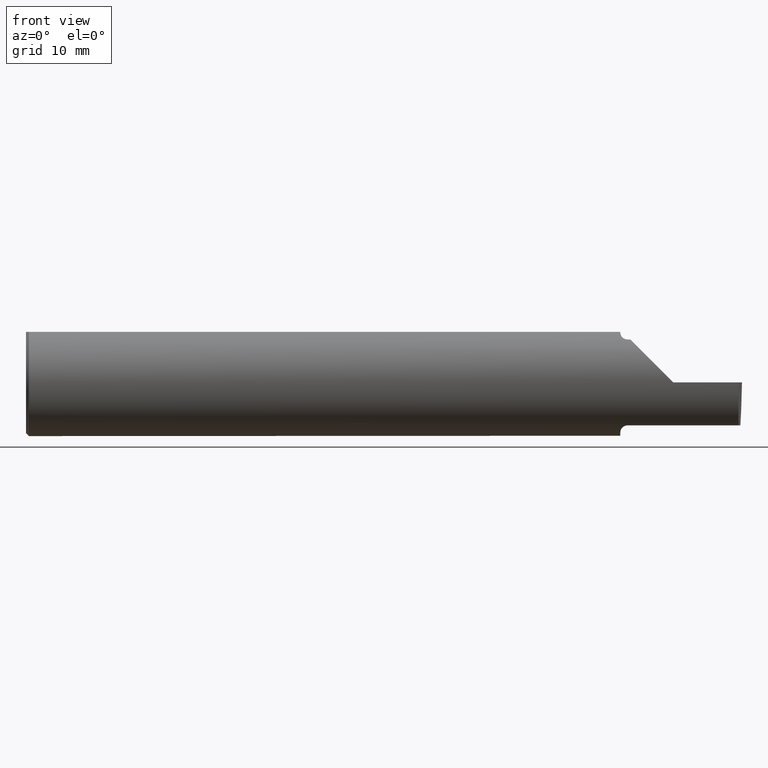
[diagram: clean part render]
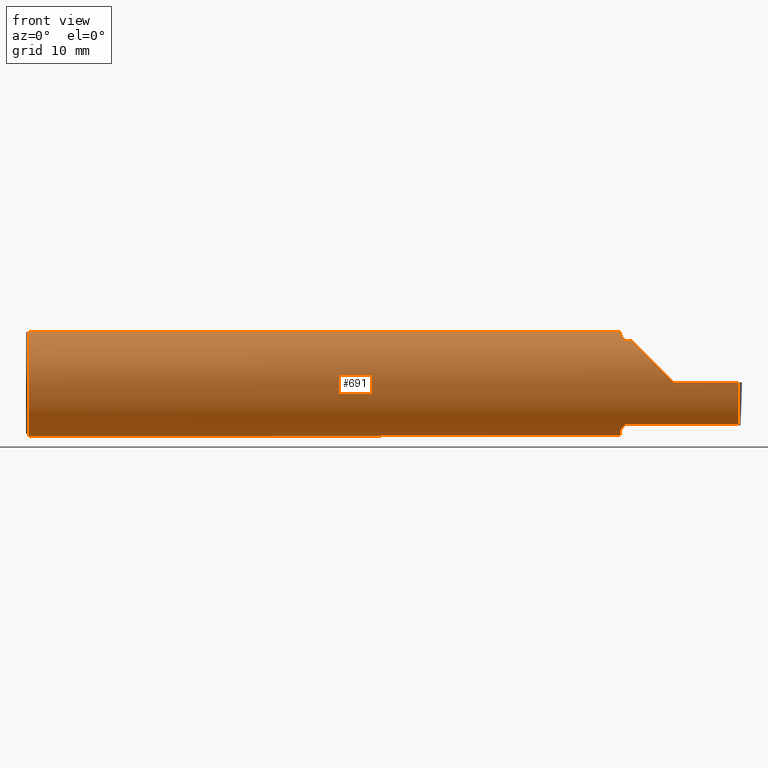
[diagram: same view with one face highlighted and labeled with its STEP entity id]
A machine part, front view. The second image highlights one B-rep face of the part: STEP entity #691.
In plain terms, the highlighted cylindrical surface (partial cylindrical patch) has radius 4.7587 mm, axis along (-1, -0, -0).
Its self-contained STEP definition (entity closure, byte-faithful):
#1 = CIRCLE ( 'NONE', #670, 0.1873499999999999888 ) ;
#5 =( BOUNDED_CURVE ( )  B_SPLINE_CURVE ( 3, ( #41, #292, #36, #789 ),
 .UNSPECIFIED., .F., .T. ) 
 B_SPLINE_CURVE_WITH_KNOTS ( ( 4, 4 ),
 ( 4.712388980384688786, 5.606916381293139295 ),
 .UNSPECIFIED. ) 
 CURVE ( )  GEOMETRIC_REPRESENTATION_ITEM ( )  RATIONAL_B_SPLINE_CURVE ( ( 1.000000000000000000, 0.9344226172588797619, 0.9344226172588797619, 1.000000000000000000 ) ) 
 REPRESENTATION_ITEM ( '' )  );
#8 = CARTESIAN_POINT ( 'NONE',  ( 2.076062863587535556, -0.08334999999999995191, -0.1677879614275112619 ) ) ;
#15 = CARTESIAN_POINT ( 'NONE',  ( 2.086319809340846820, -0.1102629523538395800, 0.1514982751257170079 ) ) ;
#16 = VECTOR ( 'NONE', #774, 39.37007874015748143 ) ;
#19 = CARTESIAN_POINT ( 'NONE',  ( 2.488255780514392335, -0.1873499999999999888, 0.000000000000000000 ) ) ;
#20 = EDGE_CURVE ( 'NONE', #267, #304, #796, .T. ) ;
#22 = CARTESIAN_POINT ( 'NONE',  ( 2.080806801261507299, -0.1009700360460131230, -0.1578590382459147679 ) ) ;
#24 = VERTEX_POINT ( 'NONE', #648 ) ;
#26 = CARTESIAN_POINT ( 'NONE',  ( 2.077380638915945710, -0.09060738690120610783, -0.1640321561807271122 ) ) ;
#36 = CARTESIAN_POINT ( 'NONE',  ( 2.150065971957464850, -0.1623470442677540371, 0.1099340280425340488 ) ) ;
#39 = EDGE_CURVE ( 'NONE', #330, #399, #471, .T. ) ;
#40 = ORIENTED_EDGE ( 'NONE', *, *, #74, .T. ) ;
#41 = CARTESIAN_POINT ( 'NONE',  ( 2.260000000000000231, -0.1873499999999999888, 2.939152317953647352E-17 ) ) ;
#58 = CARTESIAN_POINT ( 'NONE',  ( 2.488255780514392335, -0.1873499999999999888, 0.000000000000000000 ) ) ;
#59 = CIRCLE ( 'NONE', #547, 0.1873499999999999888 ) ;
#61 = LINE ( 'NONE', #305, #108 ) ;
#74 = EDGE_CURVE ( 'NONE', #304, #402, #629, .T. ) ;
#78 = CARTESIAN_POINT ( 'NONE',  ( 2.097868998470238555, -0.1172600179964006645, -0.1461167706989303650 ) ) ;
#83 = CARTESIAN_POINT ( 'NONE',  ( 0.009999999999999346217, 0.000000000000000000, 0.000000000000000000 ) ) ;
#84 = CARTESIAN_POINT ( 'NONE',  ( 2.487246082891137355, -0.1873500000000000165, -0.05781030015605123640 ) ) ;
#85 = VERTEX_POINT ( 'NONE', #210 ) ;
#90 = CARTESIAN_POINT ( 'NONE',  ( 2.092163414264744947, -0.1151183835841405045, -0.1478135984872521735 ) ) ;
#98 = CARTESIAN_POINT ( 'NONE',  ( 2.076062863587535556, -0.08334999999999995191, -0.1677879614275112619 ) ) ;
#108 = VECTOR ( 'NONE', #436, 39.37007874015748143 ) ;
#109 = EDGE_CURVE ( 'NONE', #267, #696, #707, .T. ) ;
#113 = CARTESIAN_POINT ( 'NONE',  ( 2.075346246588685162, -0.07856197451716405433, -0.1701664510438046507 ) ) ;
#128 = CARTESIAN_POINT ( 'NONE',  ( 0.000000000000000000, 0.000000000000000000, 0.000000000000000000 ) ) ;
#129 = CARTESIAN_POINT ( 'NONE',  ( 0.009999999999999346217, 0.000000000000000000, 0.000000000000000000 ) ) ;
#136 = CARTESIAN_POINT ( 'NONE',  ( 2.100000000000000089, -0.1172600179964006922, 0.1461167706989303927 ) ) ;
#139 = CARTESIAN_POINT ( 'NONE',  ( 2.077158970028690099, -0.09067355718685703170, 0.1641499263364886163 ) ) ;
#142 = EDGE_CURVE ( 'NONE', #216, #330, #716, .T. ) ;
#192 = LINE ( 'NONE', #552, #650 ) ;
#206 = CARTESIAN_POINT ( 'NONE',  ( 2.488151344270815191, -0.1172600179964006090, -0.1461167706989303927 ) ) ;
#208 = DIRECTION ( 'NONE',  ( 1.000000000000000000, 0.000000000000000000, 0.000000000000000000 ) ) ;
#210 = CARTESIAN_POINT ( 'NONE',  ( 2.113883229301068312, -0.1172600179964003175, 0.1461167706989304760 ) ) ;
#213 = DIRECTION ( 'NONE',  ( 0.000000000000000000, 0.000000000000000000, -1.000000000000000000 ) ) ;
#216 = VERTEX_POINT ( 'NONE', #542 ) ;
#221 = VERTEX_POINT ( 'NONE', #534 ) ;
#222 = CYLINDRICAL_SURFACE ( 'NONE', #340, 0.1873499999999999888 ) ;
#226 = CIRCLE ( 'NONE', #683, 0.1873499999999999888 ) ;
#230 = CARTESIAN_POINT ( 'NONE',  ( 2.075000000000000178, -0.06851976604679065053, -0.1743704796142198643 ) ) ;
#234 = CARTESIAN_POINT ( 'NONE',  ( 2.488151344270815191, -0.1172600179964006090, -0.1461167706989303927 ) ) ;
#253 = VERTEX_POINT ( 'NONE', #538 ) ;
#263 = EDGE_CURVE ( 'NONE', #575, #626, #614, .T. ) ;
#267 = VERTEX_POINT ( 'NONE', #234 ) ;
#271 = CARTESIAN_POINT ( 'NONE',  ( 2.079075010165367665, -0.09778159395695856793, 0.1599914159748310749 ) ) ;
#275 = DIRECTION ( 'NONE',  ( -1.000000000000000000, -0.000000000000000000, -0.000000000000000000 ) ) ;
#286 = ORIENTED_EDGE ( 'NONE', *, *, #342, .T. ) ;
#291 = ORIENTED_EDGE ( 'NONE', *, *, #142, .F. ) ;
#292 = CARTESIAN_POINT ( 'NONE',  ( 2.202189699843948301, -0.1873500000000000443, 0.05781030015605120170 ) ) ;
#293 = CARTESIAN_POINT ( 'NONE',  ( 2.075000000000000178, -0.06851976604679065053, -0.1743704796142198643 ) ) ;
#304 = VERTEX_POINT ( 'NONE', #58 ) ;
#305 = CARTESIAN_POINT ( 'NONE',  ( 0.000000000000000000, -0.06325108694718235836, 0.1763499999999999235 ) ) ;
#309 = DIRECTION ( 'NONE',  ( 0.000000000000000000, 0.000000000000000000, -1.000000000000000000 ) ) ;
#317 = CARTESIAN_POINT ( 'NONE',  ( 2.079475235432781677, -0.09757364237049401257, -0.1599863467203318512 ) ) ;
#323 = CARTESIAN_POINT ( 'NONE',  ( 2.487208827712860337, -0.1623470442677540926, -0.1099340280425339100 ) ) ;
#325 = ORIENTED_EDGE ( 'NONE', *, *, #109, .F. ) ;
#328 = CARTESIAN_POINT ( 'NONE',  ( 2.100000000000000089, -0.1172600179964006922, 0.1461167706989303927 ) ) ;
#330 = VERTEX_POINT ( 'NONE', #687 ) ;
#337 = CARTESIAN_POINT ( 'NONE',  ( 2.076612951569643872, -0.08702537370779862835, -0.1659621904011592264 ) ) ;
#340 = AXIS2_PLACEMENT_3D ( 'NONE', #128, #439, #673 ) ;
#342 = EDGE_CURVE ( 'NONE', #806, #744, #59, .T. ) ;
#359 = CARTESIAN_POINT ( 'NONE',  ( 2.075000000000000178, -0.07359296612170564134, -0.1723769398647691242 ) ) ;
#366 = CARTESIAN_POINT ( 'NONE',  ( 2.075000000000000178, 0.000000000000000000, 0.000000000000000000 ) ) ;
#375 = DIRECTION ( 'NONE',  ( 1.000000000000000000, 0.000000000000000000, 0.000000000000000000 ) ) ;
#380 = ORIENTED_EDGE ( 'NONE', *, *, #815, .F. ) ;
#386 = CARTESIAN_POINT ( 'NONE',  ( 2.086340974786207170, -0.1102890168945986071, -0.1514792188789464422 ) ) ;
#389 = EDGE_LOOP ( 'NONE', ( #325, #551, #40, #704, #380, #480, #291, #651, #548, #286, #641, #646, #532, #662, #617 ) ) ;
#399 = VERTEX_POINT ( 'NONE', #136 ) ;
#402 = VERTEX_POINT ( 'NONE', #494 ) ;
#408 = CARTESIAN_POINT ( 'NONE',  ( 2.076062863587533780, -0.08334999999998819742, 0.1677879614275170628 ) ) ;
#420 = CARTESIAN_POINT ( 'NONE',  ( 2.076062863587535556, -0.08334999999999995191, -0.1677879614275112619 ) ) ;
#427 = EDGE_CURVE ( 'NONE', #696, #575, #728, .T. ) ;
#433 = CIRCLE ( 'NONE', #681, 0.1873499999999999888 ) ;
#436 = DIRECTION ( 'NONE',  ( 1.000000000000000000, 0.000000000000000000, 0.000000000000000000 ) ) ;
#439 = DIRECTION ( 'NONE',  ( -1.000000000000000000, -0.000000000000000000, -0.000000000000000000 ) ) ;
#446 = EDGE_CURVE ( 'NONE', #253, #24, #767, .T. ) ;
#454 = CARTESIAN_POINT ( 'NONE',  ( 2.076062863587533780, -0.08334999999998819742, 0.1677879614275170628 ) ) ;
#461 = CARTESIAN_POINT ( 'NONE',  ( 2.264922719999999945, -0.1172600179964006090, -0.1461167706989303927 ) ) ;
#471 = B_SPLINE_CURVE_WITH_KNOTS ( 'NONE', 3,
 ( #454, #139, #271, #699, #15, #717, #644, #328 ),
 .UNSPECIFIED., .F., .F.,
 ( 4, 2, 2, 4 ),
 ( 0.0004561457252213479583, 0.001084815134961806529, 0.001399149839832031532, 0.001713484544702256751 ),
 .UNSPECIFIED. ) ;
#480 = ORIENTED_EDGE ( 'NONE', *, *, #39, .F. ) ;
#486 = CARTESIAN_POINT ( 'NONE',  ( 2.074999999999999734, -0.07360907839729496915, 0.1723706084642000480 ) ) ;
#487 = EDGE_CURVE ( 'NONE', #744, #24, #226, .T. ) ;
#488 = VECTOR ( 'NONE', #275, 39.37007874015748143 ) ;
#493 = CARTESIAN_POINT ( 'NONE',  ( 2.100000000000000089, -0.1172600179964006506, -0.1461167706989303927 ) ) ;
#494 = CARTESIAN_POINT ( 'NONE',  ( 2.260000000000000231, -0.1873499999999999888, 2.939152317953647352E-17 ) ) ;
#516 = CARTESIAN_POINT ( 'NONE',  ( 0.000000000000000000, 0.06325108694718235836, 0.1763499999999999235 ) ) ;
#528 = EDGE_CURVE ( 'NONE', #626, #253, #1, .T. ) ;
#532 = ORIENTED_EDGE ( 'NONE', *, *, #528, .F. ) ;
#534 = CARTESIAN_POINT ( 'NONE',  ( 2.075000000000000178, -0.06325108694718283020, 0.1763499999999999235 ) ) ;
#538 = CARTESIAN_POINT ( 'NONE',  ( 2.075000000000000178, 0.06325108694718235836, 0.1763499999999999235 ) ) ;
#542 = CARTESIAN_POINT ( 'NONE',  ( 2.075000000000000178, -0.06851976604679065053, 0.1743704796142198643 ) ) ;
#547 = AXIS2_PLACEMENT_3D ( 'NONE', #129, #375, #309 ) ;
#548 = ORIENTED_EDGE ( 'NONE', *, *, #781, .F. ) ;
#551 = ORIENTED_EDGE ( 'NONE', *, *, #20, .T. ) ;
#552 = CARTESIAN_POINT ( 'NONE',  ( 2.264922719999999945, -0.1172600179964006090, 0.1461167706989303927 ) ) ;
#558 = CARTESIAN_POINT ( 'NONE',  ( 0.009999999999999346217, -0.06325108694718235836, 0.1763499999999999235 ) ) ;
#575 = VERTEX_POINT ( 'NONE', #98 ) ;
#605 = CARTESIAN_POINT ( 'NONE',  ( 2.075000000000000178, -0.06851976604679065053, 0.1743704796142198643 ) ) ;
#607 = DIRECTION ( 'NONE',  ( 1.000000000000000000, 0.000000000000000000, 0.000000000000000000 ) ) ;
#610 = DIRECTION ( 'NONE',  ( 0.000000000000000000, 0.000000000000000000, -1.000000000000000000 ) ) ;
#614 = B_SPLINE_CURVE_WITH_KNOTS ( 'NONE', 3,
 ( #420, #113, #359, #293 ),
 .UNSPECIFIED., .F., .F.,
 ( 4, 4 ),
 ( 0.001278539404338876161, 0.001694873732696225476 ),
 .UNSPECIFIED. ) ;
#617 = ORIENTED_EDGE ( 'NONE', *, *, #427, .F. ) ;
#622 = CARTESIAN_POINT ( 'NONE',  ( 0.009999999999999346217, 0.000000000000000000, -0.1873499999999999888 ) ) ;
#626 = VERTEX_POINT ( 'NONE', #230 ) ;
#628 = CARTESIAN_POINT ( 'NONE',  ( 2.100000000000000089, -0.1172600179964006506, -0.1461167706989303927 ) ) ;
#629 = LINE ( 'NONE', #771, #726 ) ;
#632 = DIRECTION ( 'NONE',  ( 0.000000000000000000, 0.000000000000000000, -1.000000000000000000 ) ) ;
#635 = EDGE_CURVE ( 'NONE', #402, #85, #5, .T. ) ;
#641 = ORIENTED_EDGE ( 'NONE', *, *, #487, .T. ) ;
#644 = CARTESIAN_POINT ( 'NONE',  ( 2.095724556588812515, -0.1172600179964061046, 0.1461167706989260351 ) ) ;
#646 = ORIENTED_EDGE ( 'NONE', *, *, #446, .F. ) ;
#648 = CARTESIAN_POINT ( 'NONE',  ( 0.009999999999999346217, 0.06325108694718235836, 0.1763499999999999235 ) ) ;
#650 = VECTOR ( 'NONE', #607, 39.37007874015748143 ) ;
#651 = ORIENTED_EDGE ( 'NONE', *, *, #732, .F. ) ;
#653 = FACE_OUTER_BOUND ( 'NONE', #389, .T. ) ;
#662 = ORIENTED_EDGE ( 'NONE', *, *, #263, .F. ) ;
#670 = AXIS2_PLACEMENT_3D ( 'NONE', #770, #208, #632 ) ;
#673 = DIRECTION ( 'NONE',  ( 0.000000000000000000, 0.000000000000000000, 1.000000000000000000 ) ) ;
#681 = AXIS2_PLACEMENT_3D ( 'NONE', #366, #743, #610 ) ;
#683 = AXIS2_PLACEMENT_3D ( 'NONE', #83, #715, #213 ) ;
#687 = CARTESIAN_POINT ( 'NONE',  ( 2.076062863587533780, -0.08334999999998819742, 0.1677879614275170628 ) ) ;
#691 = ADVANCED_FACE ( 'NONE', ( #653 ), #222, .T. ) ;
#696 = VERTEX_POINT ( 'NONE', #493 ) ;
#698 = CARTESIAN_POINT ( 'NONE',  ( 2.095804171164107110, -0.1167508198888948107, -0.1465276362740038363 ) ) ;
#699 = CARTESIAN_POINT ( 'NONE',  ( 2.084249444250374061, -0.1073163636891284328, 0.1536158790136666064 ) ) ;
#701 = CARTESIAN_POINT ( 'NONE',  ( 2.084228130464465867, -0.1072797540790366433, -0.1536407449207395914 ) ) ;
#704 = ORIENTED_EDGE ( 'NONE', *, *, #635, .T. ) ;
#707 = LINE ( 'NONE', #461, #488 ) ;
#715 = DIRECTION ( 'NONE',  ( 1.000000000000000000, 0.000000000000000000, 0.000000000000000000 ) ) ;
#716 = B_SPLINE_CURVE_WITH_KNOTS ( 'NONE', 3,
 ( #605, #486, #721, #408 ),
 .UNSPECIFIED., .F., .F.,
 ( 4, 4 ),
 ( 4.423516731080748054E-05, 0.0004561457252213479583 ),
 .UNSPECIFIED. ) ;
#717 = CARTESIAN_POINT ( 'NONE',  ( 2.091924463282975211, -0.1152182125075826846, 0.1477647100440766526 ) ) ;
#721 = CARTESIAN_POINT ( 'NONE',  ( 2.075344683557281300, -0.07855153123406184712, 0.1701716388274757408 ) ) ;
#726 = VECTOR ( 'NONE', #762, 39.37007874015748143 ) ;
#728 = B_SPLINE_CURVE_WITH_KNOTS ( 'NONE', 3,
 ( #628, #78, #698, #90, #779, #386, #701, #22, #317, #26, #337, #8 ),
 .UNSPECIFIED., .F., .F.,
 ( 4, 2, 2, 2, 2, 4 ),
 ( 1.967976973726874814E-07, 0.0001599896235275609119, 0.0003197824493577490989, 0.0006393681010181249307, 0.0009589537526785007083, 0.001278539404338876161 ),
 .UNSPECIFIED. ) ;
#732 = EDGE_CURVE ( 'NONE', #221, #216, #433, .T. ) ;
#743 = DIRECTION ( 'NONE',  ( 1.000000000000000000, 0.000000000000000000, 0.000000000000000000 ) ) ;
#744 = VERTEX_POINT ( 'NONE', #622 ) ;
#762 = DIRECTION ( 'NONE',  ( -1.000000000000000000, -0.000000000000000000, -0.000000000000000000 ) ) ;
#767 = LINE ( 'NONE', #516, #16 ) ;
#770 = CARTESIAN_POINT ( 'NONE',  ( 2.075000000000000178, 0.000000000000000000, 0.000000000000000000 ) ) ;
#771 = CARTESIAN_POINT ( 'NONE',  ( 3.749399456654646757E-32, -0.1873499999999999610, 3.061616997868383634E-16 ) ) ;
#774 = DIRECTION ( 'NONE',  ( -1.000000000000000000, -0.000000000000000000, -0.000000000000000000 ) ) ;
#779 = CARTESIAN_POINT ( 'NONE',  ( 2.090551048069662077, -0.1140002044565610606, -0.1486821290834930975 ) ) ;
#781 = EDGE_CURVE ( 'NONE', #806, #221, #61, .T. ) ;
#789 = CARTESIAN_POINT ( 'NONE',  ( 2.113883229301068312, -0.1172600179964003175, 0.1461167706989304760 ) ) ;
#796 =( BOUNDED_CURVE ( )  B_SPLINE_CURVE ( 3, ( #206, #323, #84, #19 ),
 .UNSPECIFIED., .F., .T. ) 
 B_SPLINE_CURVE_WITH_KNOTS ( ( 4, 4 ),
 ( 5.852427379562161747, 6.746954780470609592 ),
 .UNSPECIFIED. ) 
 CURVE ( )  GEOMETRIC_REPRESENTATION_ITEM ( )  RATIONAL_B_SPLINE_CURVE ( ( 1.000000000000000000, 0.9344226172588802060, 0.9344226172588802060, 1.000000000000000000 ) ) 
 REPRESENTATION_ITEM ( '' )  );
#806 = VERTEX_POINT ( 'NONE', #558 ) ;
#815 = EDGE_CURVE ( 'NONE', #399, #85, #192, .T. ) ;